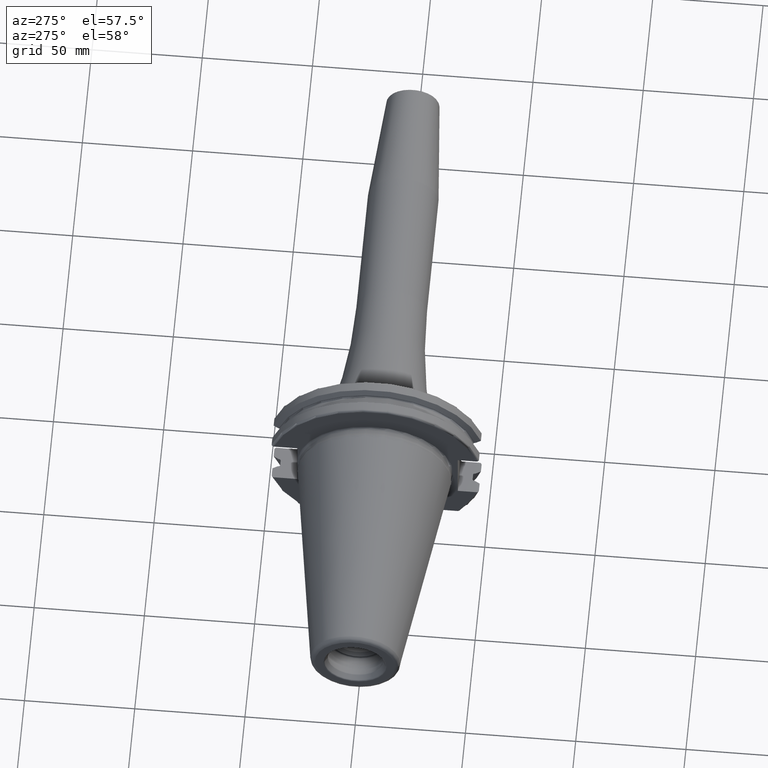
[diagram: clean part render]
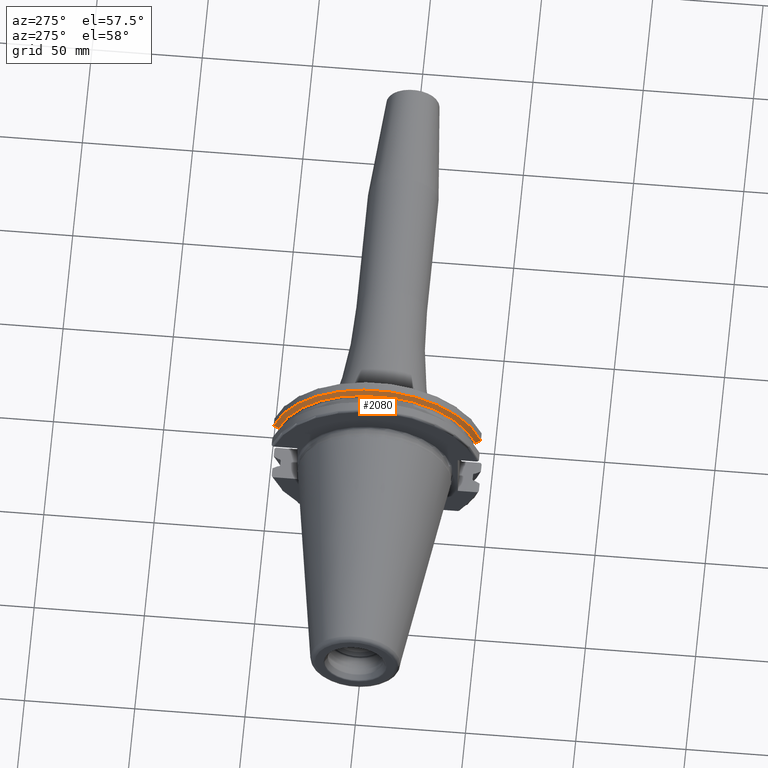
[diagram: same view with one face highlighted and labeled with its STEP entity id]
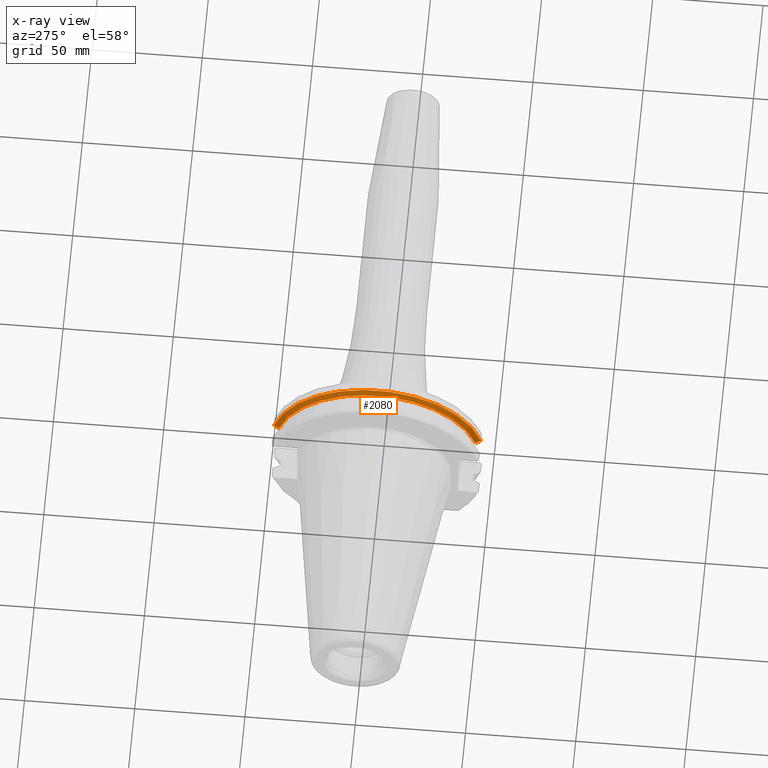
[diagram: x-ray of the same camera — body ghosted, the highlighted face saturated]
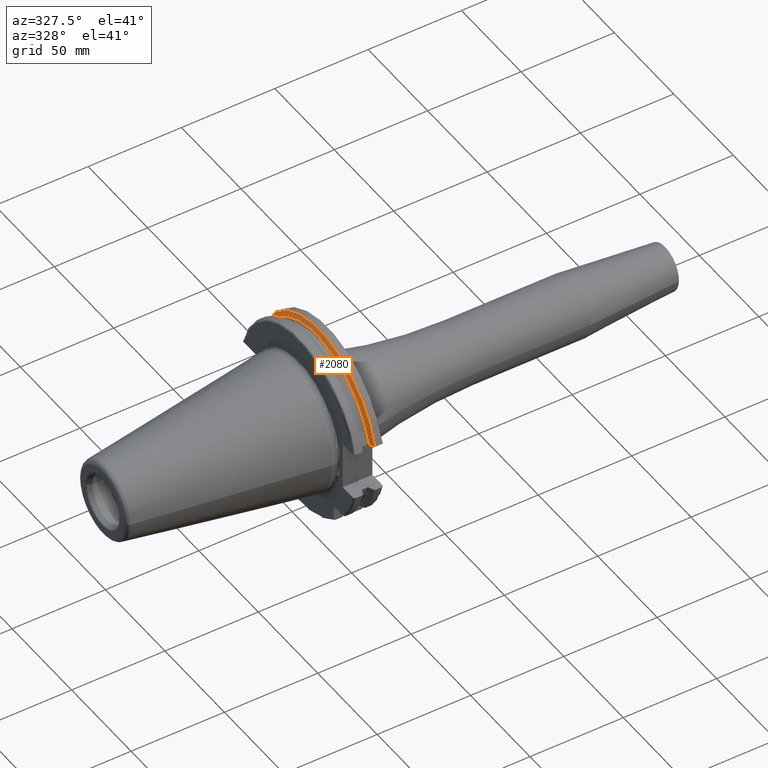
[diagram: same view with one face highlighted and labeled with its STEP entity id]
A machine part, auxiliary view. The second image highlights one B-rep face of the part: STEP entity #2080.
The next image is the same camera in x-ray: the body ghosted, the highlighted face saturated — about 0% of this face is hidden behind the body in this view.
A second angle (auxiliary view) of the same face is appended — the face is thin or edge-on in the first view.
In plain terms, the highlighted conical surface has half-angle 60 deg.
Its self-contained STEP definition (entity closure, byte-faithful):
#457=CARTESIAN_POINT('',(1.441537838583E1,4.699929686974E1,1.29E1));
#458=CARTESIAN_POINT('',(1.426451908496E1,4.672833723043E1,1.29E1));
#459=CARTESIAN_POINT('',(1.396501135619E1,4.619006057422E1,1.29E1));
#460=CARTESIAN_POINT('',(1.352242021955E1,4.539363402665E1,1.29E1));
#461=CARTESIAN_POINT('',(1.323173924582E1,4.486988275438E1,1.29E1));
#462=CARTESIAN_POINT('',(1.30875E1,4.460981716077E1,1.29E1));
#464=CARTESIAN_POINT('',(1.30875E1,-4.460981716077E1,1.29E1));
#465=CARTESIAN_POINT('',(1.323171622645E1,-4.486984125009E1,1.29E1));
#466=CARTESIAN_POINT('',(1.352236645045E1,-4.539353719098E1,1.29E1));
#467=CARTESIAN_POINT('',(1.396495664446E1,-4.618996220278E1,1.29E1));
#468=CARTESIAN_POINT('',(1.426449561388E1,-4.672829507383E1,1.29E1));
#469=CARTESIAN_POINT('',(1.441537838583E1,-4.699929686974E1,1.29E1));
#471=CARTESIAN_POINT('',(1.30875E1,0.E0,0.E0));
#472=DIRECTION('',(1.E0,0.E0,0.E0));
#473=DIRECTION('',(0.E0,9.606411165078E-1,2.777924499957E-1));
#474=AXIS2_PLACEMENT_3D('',#471,#472,#473);
#502=CARTESIAN_POINT('',(1.441537838583E1,0.E0,0.E0));
#503=DIRECTION('',(1.E0,0.E0,0.E0));
#504=DIRECTION('',(0.E0,9.643354064066E-1,2.646832521159E-1));
#505=AXIS2_PLACEMENT_3D('',#502,#503,#504);
#1322=CARTESIAN_POINT('',(1.30875E1,4.460981716077E1,1.29E1));
#1323=VERTEX_POINT('',#1322);
#1332=CARTESIAN_POINT('',(1.30875E1,-4.460981716077E1,1.29E1));
#1333=VERTEX_POINT('',#1332);
#1334=VERTEX_POINT('',#457);
#1335=VERTEX_POINT('',#469);
#2068=CARTESIAN_POINT('',(1.375143919291E1,0.E0,0.E0));
#2069=DIRECTION('',(1.E0,0.E0,0.E0));
#2070=DIRECTION('',(0.E0,-1.E0,0.E0));
#2071=AXIS2_PLACEMENT_3D('',#2068,#2069,#2070);
#2072=CONICAL_SURFACE('',#2071,4.758752358474E1,6.E1);
#2073=ORIENTED_EDGE('',*,*,#1928,.F.);
#2075=ORIENTED_EDGE('',*,*,#2074,.T.);
#2076=ORIENTED_EDGE('',*,*,#1969,.F.);
#2077=ORIENTED_EDGE('',*,*,#2032,.F.);
#2078=EDGE_LOOP('',(#2073,#2075,#2076,#2077));
#2079=FACE_OUTER_BOUND('',#2078,.F.);
#2080=ADVANCED_FACE('',(#2079),#2072,.T.);
#463=B_SPLINE_CURVE_WITH_KNOTS('',3,(#457,#458,#459,#460,#461,#462),
.UNSPECIFIED.,.F.,.F.,(4,1,1,4),(0.E0,3.333333333333E-1,6.666666666667E-1,1.E0),
.UNSPECIFIED.);
#470=B_SPLINE_CURVE_WITH_KNOTS('',3,(#464,#465,#466,#467,#468,#469),
.UNSPECIFIED.,.F.,.F.,(4,1,1,4),(0.E0,3.333333333333E-1,6.666666666667E-1,1.E0),
.UNSPECIFIED.);
#475=CIRCLE('',#474,4.643754716948E1);
#506=CIRCLE('',#505,4.87375E1);
#1928=EDGE_CURVE('',#1334,#1323,#463,.T.);
#1969=EDGE_CURVE('',#1333,#1335,#470,.T.);
#2032=EDGE_CURVE('',#1323,#1333,#475,.T.);
#2074=EDGE_CURVE('',#1334,#1335,#506,.T.);